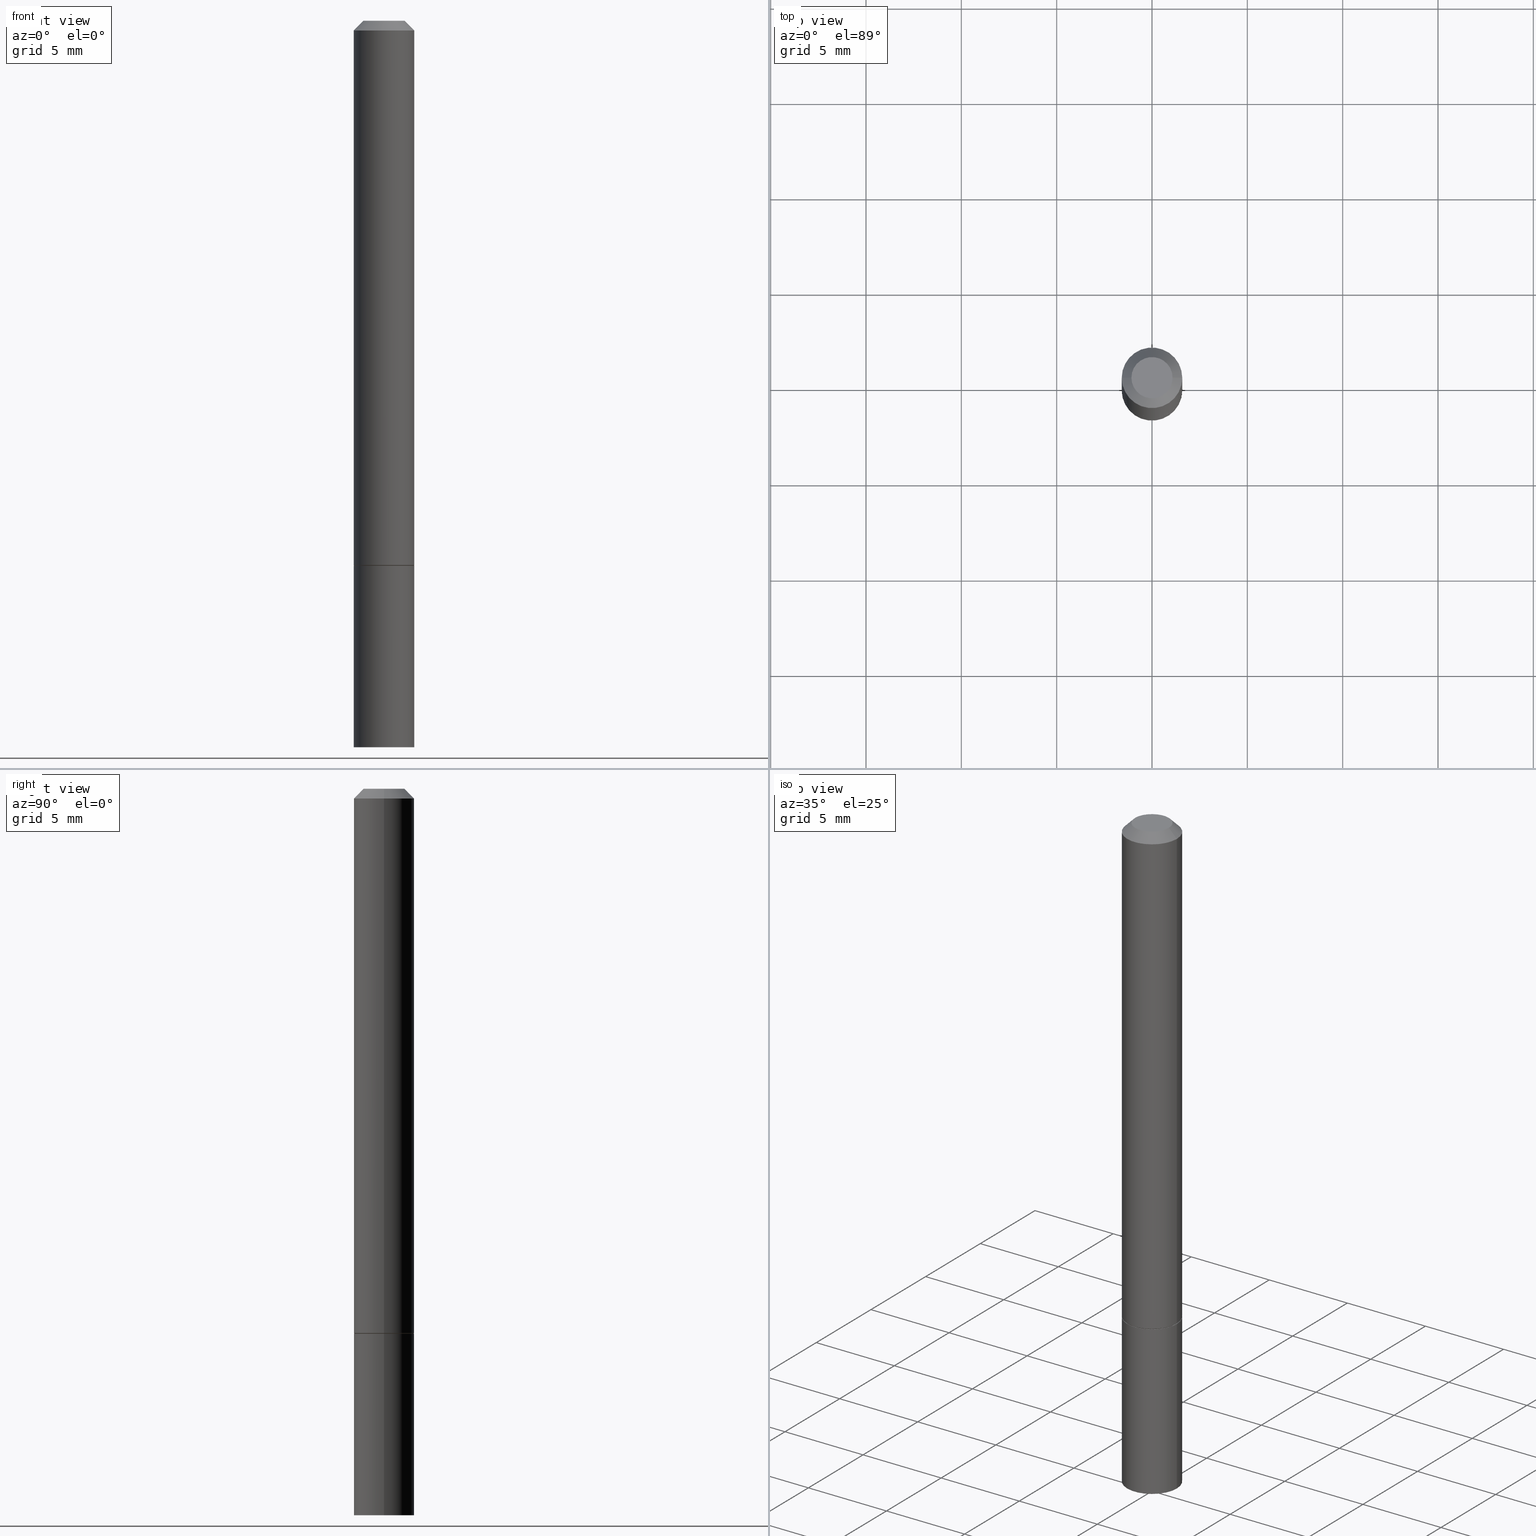
[diagram: canonical four-view strip — front | top / right | iso, engineering-drawing reading convention]
A machine part, canonical four-view strip (front | top / right | iso — engineering-drawing reading convention). The complete STEP part file that produces these views, byte-faithful:
ISO-10303-21;
HEADER;
FILE_DESCRIPTION (( 'STEP AP203' ),
    '1' );
FILE_NAME ('39377.STEP',
    '2024-02-28T00:40:19',
    ( '' ),
    ( '' ),
    'SwSTEP 2.0',
    'SolidWorks 2023',
    '' );
FILE_SCHEMA (( 'CONFIG_CONTROL_DESIGN' ));
ENDSEC;

DATA;
#1 = PERSON ( 'UNSPECIFIED', 'UNSPECIFIED', 'UNSPECIFIED', ('UNSPECIFIED'), ('UNSPECIFIED'), ('UNSPECIFIED') ) ;
#2 = DIRECTION ( 'NONE',  ( 2.445468806185136597E-29, -3.491481338843145583E-15, -1.000000000000000000 ) ) ;
#3 = AXIS2_PLACEMENT_3D ( 'NONE', #28, #285, #359 ) ;
#4 = CC_DESIGN_SECURITY_CLASSIFICATION ( #15, ( #67 ) ) ;
#5 = ORIENTED_EDGE ( 'NONE', *, *, #65, .F. ) ;
#6 = DIRECTION ( 'NONE',  ( -1.000000000000000000, 6.982962677686265922E-15, -4.876176775795935793E-29 ) ) ;
#7 = MANIFOLD_SOLID_BREP ( 'Body-Move/Copy2[2]', #343 ) ;
#8 = LENGTH_MEASURE_WITH_UNIT ( LENGTH_MEASURE( 0.02539999999999999897 ), #258 );
#9 = FACE_OUTER_BOUND ( 'NONE', #155, .T. ) ;
#10 = CONICAL_SURFACE ( 'NONE', #23, 0.06249999999999988204, 0.7853981633974473908 ) ;
#11 = DIRECTION ( 'NONE',  ( -2.445468806185136597E-29, 3.491481338843145583E-15, 1.000000000000000000 ) ) ;
#12 = PERSON_AND_ORGANIZATION ( #1, #128 ) ;
#13 = EDGE_CURVE ( 'NONE', #22, #163, #157, .T. ) ;
#14 = VERTEX_POINT ( 'NONE', #17 ) ;
#15 = SECURITY_CLASSIFICATION ( '', '', #269 ) ;
#16 = PERSON_AND_ORGANIZATION ( #1, #128 ) ;
#17 = CARTESIAN_POINT ( 'NONE',  ( 0.06250000000000001388, -4.360860192215086309E-15, -1.123999999999999888 ) ) ;
#18 = COORDINATED_UNIVERSAL_TIME_OFFSET ( 5, 0, .BEHIND. ) ;
#19 = ORIENTED_EDGE ( 'NONE', *, *, #265, .F. ) ;
#20 = APPROVAL_ROLE ( '' ) ;
#21 = CC_DESIGN_DATE_AND_TIME_ASSIGNMENT ( #153, #346, ( #15 ) ) ;
#22 = VERTEX_POINT ( 'NONE', #246 ) ;
#23 = AXIS2_PLACEMENT_3D ( 'NONE', #335, #310, #58 ) ;
#24 = VERTEX_POINT ( 'NONE', #353 ) ;
#25 = CARTESIAN_POINT ( 'NONE',  ( -0.06150000000000001299, -3.485634269357854820E-15, -1.124999999999999778 ) ) ;
#26 = DIRECTION ( 'NONE',  ( 1.000000000000000000, -6.982962677686267499E-15, 4.876176775795935793E-29 ) ) ;
#27 = VECTOR ( 'NONE', #56, 39.37007874015748854 ) ;
#28 = CARTESIAN_POINT ( 'NONE',  ( 0.000000000000000000, 0.000000000000000000, 0.000000000000000000 ) ) ;
#29 = CC_DESIGN_APPROVAL ( #68, ( #172 ) ) ;
#30 = FACE_OUTER_BOUND ( 'NONE', #304, .T. ) ;
#31 = CARTESIAN_POINT ( 'NONE',  ( 4.364351673554284500E-16, 0.06249999999999478195, -1.500000000000000222 ) ) ;
#32 = LINE ( 'NONE', #318, #138 ) ;
#33 = AXIS2_PLACEMENT_3D ( 'NONE', #196, #337, #282 ) ;
#34 = ADVANCED_FACE ( 'NONE', ( #256 ), #197, .F. ) ;
#35 = CARTESIAN_POINT ( 'NONE',  ( 0.06150000000000001299, -4.357368710876244090E-15, -1.124999999999999778 ) ) ;
#36 = PLANE ( 'NONE',  #123 ) ;
#37 = PLANE ( 'NONE',  #117 ) ;
#38 = AXIS2_PLACEMENT_3D ( 'NONE', #171, #115, #55 ) ;
#39 = AXIS2_PLACEMENT_3D ( 'NONE', #148, #292, #146 ) ;
#40 = APPROVAL_ROLE ( '' ) ;
#41 = DIRECTION ( 'NONE',  ( 1.000000000000000000, 0.000000000000000000, 0.000000000000000000 ) ) ;
#42 = VERTEX_POINT ( 'NONE', #307 ) ;
#43 = DATE_AND_TIME ( #95, #314 ) ;
#44 = ORIENTED_EDGE ( 'NONE', *, *, #231, .F. ) ;
#45 = CONICAL_SURFACE ( 'NONE', #300, 0.06249999999999988204, 0.7853981633974473908 ) ;
#46 =( CONVERSION_BASED_UNIT ( 'INCH', #8 ) LENGTH_UNIT ( ) NAMED_UNIT ( #125 ) );
#47 = EDGE_LOOP ( 'NONE', ( #70, #103, #127, #19 ) ) ;
#48 = CC_DESIGN_DATE_AND_TIME_ASSIGNMENT ( #126, #132, ( #172 ) ) ;
#49 = PERSON_AND_ORGANIZATION ( #1, #128 ) ;
#50 = ORIENTED_EDGE ( 'NONE', *, *, #276, .T. ) ;
#51 = VERTEX_POINT ( 'NONE', #140 ) ;
#52 = ADVANCED_FACE ( 'NONE', ( #283 ), #10, .T. ) ;
#53 = CARTESIAN_POINT ( 'NONE',  ( 3.668203209277704335E-29, -5.237222008264717388E-15, -1.499999999999999778 ) ) ;
#54 = APPROVAL ( #266, 'UNSPECIFIED' ) ;
#55 = DIRECTION ( 'NONE',  ( 1.000000000000000000, -6.982962677686268288E-15, 0.000000000000000000 ) ) ;
#56 = DIRECTION ( 'NONE',  ( -0.7071067811865232589, 7.493145998870265808E-15, 0.7071067811865715536 ) ) ;
#57 = DIRECTION ( 'NONE',  ( 1.000000000000000000, -6.982962677686261189E-15, 0.000000000000000000 ) ) ;
#58 = DIRECTION ( 'NONE',  ( -1.000000000000000000, 6.982962677686266711E-15, 0.000000000000000000 ) ) ;
#59 = DIRECTION ( 'NONE',  ( 1.000000000000000000, -6.982962677686268288E-15, 0.000000000000000000 ) ) ;
#60 = DIRECTION ( 'NONE',  ( -2.445468806185136597E-29, 3.491481338843145583E-15, 1.000000000000000000 ) ) ;
#61 = AXIS2_PLACEMENT_3D ( 'NONE', #110, #281, #336 ) ;
#62 = DIRECTION ( 'NONE',  ( -1.000000000000000000, 6.982962677686265922E-15, -4.876176775795935793E-29 ) ) ;
#63 = DIRECTION ( 'NONE',  ( -2.445468806185136877E-29, 3.491481338843145188E-15, 1.000000000000000000 ) ) ;
#64 = ADVANCED_FACE ( 'NONE', ( #30 ), #193, .F. ) ;
#65 = EDGE_CURVE ( 'NONE', #74, #316, #181, .T. ) ;
#66 = CIRCLE ( 'NONE', #194, 0.04249999999999988509 ) ;
#67 = PRODUCT_DEFINITION_FORMATION_WITH_SPECIFIED_SOURCE ( 'ANY', '', #101, .NOT_KNOWN. ) ;
#68 = APPROVAL ( #297, 'UNSPECIFIED' ) ;
#69 = APPLICATION_PROTOCOL_DEFINITION ( 'international standard', 'config_control_design', 1994, #277 ) ;
#70 = ORIENTED_EDGE ( 'NONE', *, *, #137, .F. ) ;
#71 = PERSON_AND_ORGANIZATION ( #1, #128 ) ;
#72 = CARTESIAN_POINT ( 'NONE',  ( -0.06249999999999988204, 3.666055405785276317E-16, -0.02000000000000008715 ) ) ;
#73 = APPROVAL_DATE_TIME ( #43, #68 ) ;
#74 = VERTEX_POINT ( 'NONE', #25 ) ;
#75 = APPROVAL_DATE_TIME ( #108, #272 ) ;
#76 = ORIENTED_EDGE ( 'NONE', *, *, #339, .F. ) ;
#77 = PERSON_AND_ORGANIZATION_ROLE ( 'creator' ) ;
#78 = ORIENTED_EDGE ( 'NONE', *, *, #365, .F. ) ;
#79 = CC_DESIGN_PERSON_AND_ORGANIZATION_ASSIGNMENT ( #249, #104, ( #101 ) ) ;
#80 = DIRECTION ( 'NONE',  ( -2.445468806185136597E-29, 3.491481338843145583E-15, 1.000000000000000000 ) ) ;
#81 = CLOSED_SHELL ( 'NONE', ( #116, #299, #209, #177 ) ) ;
#82 = CC_DESIGN_APPROVAL ( #272, ( #15 ) ) ;
#83 = DIRECTION ( 'NONE',  ( -2.445468806185136597E-29, 3.491481338843145583E-15, 1.000000000000000000 ) ) ;
#84 = DIRECTION ( 'NONE',  ( -2.445468806185136597E-29, 3.491481338843145583E-15, 1.000000000000000000 ) ) ;
#85 = CYLINDRICAL_SURFACE ( 'NONE', #3, 0.06249999999999995143 ) ;
#86 = CC_DESIGN_PERSON_AND_ORGANIZATION_ASSIGNMENT ( #71, #219, ( #67 ) ) ;
#87 = ORIENTED_EDGE ( 'NONE', *, *, #339, .T. ) ;
#88 = LINE ( 'NONE', #202, #325 ) ;
#89 = VECTOR ( 'NONE', #63, 39.37007874015748143 ) ;
#90 = DIRECTION ( 'NONE',  ( 0.7071067811865469066, -7.319954787623254468E-15, -0.7071067811865482389 ) ) ;
#91 = APPLICATION_CONTEXT ( 'configuration controlled 3d designs of mechanical parts and assemblies' ) ;
#92 = DIRECTION ( 'NONE',  ( -2.445468806185136597E-29, 3.491481338843145583E-15, 1.000000000000000000 ) ) ;
#93 = CARTESIAN_POINT ( 'NONE',  ( 0.04249999999999988509, -3.950909582714363501E-16, -5.549066237130292766E-17 ) ) ;
#94 = CARTESIAN_POINT ( 'NONE',  ( 3.668203209277704335E-29, -5.237222008264717388E-15, -1.499999999999999778 ) ) ;
#95 = CALENDAR_DATE ( 2024, 27, 2 ) ;
#96 = ORIENTED_EDGE ( 'NONE', *, *, #265, .T. ) ;
#97 = AXIS2_PLACEMENT_3D ( 'NONE', #185, #295, #41 ) ;
#98 = EDGE_CURVE ( 'NONE', #24, #42, #262, .T. ) ;
#99 = CALENDAR_DATE ( 2024, 27, 2 ) ;
#100 = ORIENTED_EDGE ( 'NONE', *, *, #13, .T. ) ;
#101 = PRODUCT ( '39377', '39377', '', ( #273 ) ) ;
#102 = COORDINATED_UNIVERSAL_TIME_OFFSET ( 5, 0, .BEHIND. ) ;
#103 = ORIENTED_EDGE ( 'NONE', *, *, #180, .T. ) ;
#104 = PERSON_AND_ORGANIZATION_ROLE ( 'design_owner' ) ;
#105 = EDGE_LOOP ( 'NONE', ( #186, #109, #350, #302 ) ) ;
#106 = AXIS2_PLACEMENT_3D ( 'NONE', #239, #92, #182 ) ;
#107 = CIRCLE ( 'NONE', #222, 0.06250000000000001388 ) ;
#108 = DATE_AND_TIME ( #159, #167 ) ;
#109 = ORIENTED_EDGE ( 'NONE', *, *, #98, .T. ) ;
#110 = CARTESIAN_POINT ( 'NONE',  ( 2.751152406958278111E-29, -3.927916506198538435E-15, -1.124999999999999778 ) ) ;
#111 = CARTESIAN_POINT ( 'NONE',  ( 2.748706938152093068E-29, -3.924425024859694639E-15, -1.123999999999999888 ) ) ;
#112 = APPROVAL_PERSON_ORGANIZATION ( #49, #68, #20 ) ;
#113 = CARTESIAN_POINT ( 'NONE',  ( 0.06249999999999988204, -4.986107516375831334E-16, -0.02000000000000008715 ) ) ;
#114 = FACE_OUTER_BOUND ( 'NONE', #305, .T. ) ;
#115 = DIRECTION ( 'NONE',  ( -2.445468806185136597E-29, 3.491481338843145583E-15, 1.000000000000000000 ) ) ;
#116 = ADVANCED_FACE ( 'NONE', ( #114 ), #257, .T. ) ;
#117 = AXIS2_PLACEMENT_3D ( 'NONE', #31, #341, #62 ) ;
#118 = DIRECTION ( 'NONE',  ( 1.000000000000000000, -6.982962677686261189E-15, 0.000000000000000000 ) ) ;
#119 = EDGE_CURVE ( 'NONE', #22, #191, #66, .T. ) ;
#120 = LINE ( 'NONE', #288, #206 ) ;
#121 = FACE_OUTER_BOUND ( 'NONE', #347, .T. ) ;
#122 = LINE ( 'NONE', #319, #89 ) ;
#123 = AXIS2_PLACEMENT_3D ( 'NONE', #208, #290, #6 ) ;
#124 = CARTESIAN_POINT ( 'NONE',  ( 2.751152406958278111E-29, -3.927916506198538435E-15, -1.124999999999999778 ) ) ;
#125 = DIMENSIONAL_EXPONENTS ( 1.000000000000000000, 0.000000000000000000, 0.000000000000000000, 0.000000000000000000, 0.000000000000000000, 0.000000000000000000, 0.000000000000000000 ) ;
#126 = DATE_AND_TIME ( #223, #356 ) ;
#127 = ORIENTED_EDGE ( 'NONE', *, *, #289, .T. ) ;
#128 = ORGANIZATION ( 'UNSPECIFIED', 'UNSPECIFIED', '' ) ;
#129 = MANIFOLD_SOLID_BREP ( 'Body-Move/Copy2[1]', #81 ) ;
#130 = PERSON_AND_ORGANIZATION_ROLE ( 'classification_officer' ) ;
#131 = ORIENTED_EDGE ( 'NONE', *, *, #189, .F. ) ;
#132 = DATE_TIME_ROLE ( 'creation_date' ) ;
#133 = ORIENTED_EDGE ( 'NONE', *, *, #65, .T. ) ;
#134 = ADVANCED_FACE ( 'NONE', ( #366 ), #252, .T. ) ;
#135 = SHAPE_DEFINITION_REPRESENTATION ( #352, #254 ) ;
#136 = EDGE_LOOP ( 'NONE', ( #44, #235, #220, #214 ) ) ;
#137 = EDGE_CURVE ( 'NONE', #160, #163, #88, .T. ) ;
#138 = VECTOR ( 'NONE', #90, 39.37007874015748143 ) ;
#139 = AXIS2_PLACEMENT_3D ( 'NONE', #124, #175, #344 ) ;
#140 = CARTESIAN_POINT ( 'NONE',  ( -0.06250000000000001388, -4.138480047381564901E-15, -1.124999999999999778 ) ) ;
#141 = CARTESIAN_POINT ( 'NONE',  ( -0.06150000000000001299, -3.490932723706076827E-15, -1.124999999999999778 ) ) ;
#142 = CYLINDRICAL_SURFACE ( 'NONE', #306, 0.06250000000000001388 ) ;
#143 = EDGE_CURVE ( 'NONE', #74, #160, #229, .T. ) ;
#144 = DIRECTION ( 'NONE',  ( 1.000000000000000000, -6.982962677686266711E-15, 0.000000000000000000 ) ) ;
#145 = DIRECTION ( 'NONE',  ( 1.000000000000000000, -6.982962677686267499E-15, 4.870577812114097619E-29 ) ) ;
#146 = DIRECTION ( 'NONE',  ( 1.000000000000000000, -6.982962677686266711E-15, 0.000000000000000000 ) ) ;
#147 = CC_DESIGN_PERSON_AND_ORGANIZATION_ASSIGNMENT ( #16, #130, ( #15 ) ) ;
#148 = CARTESIAN_POINT ( 'NONE',  ( 4.890937612370294178E-31, -6.982962677686321191E-17, -0.02000000000000008715 ) ) ;
#149 = FACE_OUTER_BOUND ( 'NONE', #357, .T. ) ;
#150 = CARTESIAN_POINT ( 'NONE',  ( 1.357006838635785746E-45, -1.937446121494581442E-31, -5.549066237130534971E-17 ) ) ;
#151 = FACE_OUTER_BOUND ( 'NONE', #332, .T. ) ;
#152 = AXIS2_PLACEMENT_3D ( 'NONE', #150, #60, #264 ) ;
#153 = DATE_AND_TIME ( #245, #349 ) ;
#154 = PERSON_AND_ORGANIZATION ( #1, #128 ) ;
#155 = EDGE_LOOP ( 'NONE', ( #244, #271, #100, #96 ) ) ;
#156 = PERSON_AND_ORGANIZATION ( #1, #128 ) ;
#157 = LINE ( 'NONE', #72, #268 ) ;
#158 = AXIS2_PLACEMENT_3D ( 'NONE', #323, #11, #59 ) ;
#159 = CALENDAR_DATE ( 2024, 27, 2 ) ;
#160 = VERTEX_POINT ( 'NONE', #253 ) ;
#161 = EDGE_CURVE ( 'NONE', #328, #51, #166, .T. ) ;
#162 = COORDINATED_UNIVERSAL_TIME_OFFSET ( 5, 0, .BEHIND. ) ;
#163 = VERTEX_POINT ( 'NONE', #333 ) ;
#164 = ADVANCED_FACE ( 'NONE', ( #225 ), #85, .T. ) ;
#165 = ORIENTED_EDGE ( 'NONE', *, *, #240, .T. ) ;
#166 = CIRCLE ( 'NONE', #33, 0.06250000000000001388 ) ;
#167 = LOCAL_TIME ( 19, 40, 19.00000000000000000, #162 ) ;
#168 = FACE_OUTER_BOUND ( 'NONE', #105, .T. ) ;
#169 = DIRECTION ( 'NONE',  ( 1.000000000000000000, -6.982962677686266711E-15, 4.876176775795935793E-29 ) ) ;
#170 = DIRECTION ( 'NONE',  ( -2.445468806185136597E-29, 3.491481338843145583E-15, 1.000000000000000000 ) ) ;
#171 = CARTESIAN_POINT ( 'NONE',  ( 2.751152406958278111E-29, -3.927916506198538435E-15, -1.124999999999999778 ) ) ;
#172 = PRODUCT_DEFINITION ( 'UNKNOWN', '', #67, #236 ) ;
#173 = CARTESIAN_POINT ( 'NONE',  ( 1.357006838635785746E-45, -1.937446121494581442E-31, -5.549066237130534971E-17 ) ) ;
#174 = ORIENTED_EDGE ( 'NONE', *, *, #161, .F. ) ;
#175 = DIRECTION ( 'NONE',  ( -2.445468806185136597E-29, 3.491481338843145583E-15, 1.000000000000000000 ) ) ;
#176 = DIRECTION ( 'NONE',  ( -2.445468806185136877E-29, 3.491481338843145188E-15, 1.000000000000000000 ) ) ;
#177 = ADVANCED_FACE ( 'NONE', ( #168 ), #142, .T. ) ;
#178 = DIRECTION ( 'NONE',  ( -2.445468806185136877E-29, 3.491481338843145188E-15, 1.000000000000000000 ) ) ;
#179 = CARTESIAN_POINT ( 'NONE',  ( 0.06249999999999995143, -4.364351673553913243E-16, 3.047610484872457418E-30 ) ) ;
#180 = EDGE_CURVE ( 'NONE', #160, #14, #212, .T. ) ;
#181 = CIRCLE ( 'NONE', #38, 0.06150000000000001299 ) ;
#182 = DIRECTION ( 'NONE',  ( 1.000000000000000000, -6.982962677686268288E-15, 0.000000000000000000 ) ) ;
#183 = PERSON_AND_ORGANIZATION ( #1, #128 ) ;
#184 = VERTEX_POINT ( 'NONE', #113 ) ;
#185 = CARTESIAN_POINT ( 'NONE',  ( 0.000000000000000000, 0.000000000000000000, 0.000000000000000000 ) ) ;
#186 = ORIENTED_EDGE ( 'NONE', *, *, #240, .F. ) ;
#187 = APPROVAL_ROLE ( '' ) ;
#188 = ORIENTED_EDGE ( 'NONE', *, *, #241, .F. ) ;
#189 = EDGE_CURVE ( 'NONE', #184, #163, #320, .T. ) ;
#190 = ORIENTED_EDGE ( 'NONE', *, *, #119, .T. ) ;
#191 = VERTEX_POINT ( 'NONE', #93 ) ;
#192 = ADVANCED_FACE ( 'NONE', ( #121 ), #361, .T. ) ;
#193 = PLANE ( 'NONE',  #61 ) ;
#194 = AXIS2_PLACEMENT_3D ( 'NONE', #173, #84, #145 ) ;
#195 = AXIS2_PLACEMENT_3D ( 'NONE', #237, #342, #260 ) ;
#196 = CARTESIAN_POINT ( 'NONE',  ( 2.751152406958278111E-29, -3.927916506198538435E-15, -1.124999999999999778 ) ) ;
#197 = PLANE ( 'NONE',  #284 ) ;
#198 = DIRECTION ( 'NONE',  ( 1.000000000000000000, -6.982962677686267499E-15, 4.876176775795935793E-29 ) ) ;
#199 = ADVANCED_FACE ( 'NONE', ( #9 ), #45, .T. ) ;
#200 = ORIENTED_EDGE ( 'NONE', *, *, #98, .F. ) ;
#201 = APPROVAL_PERSON_ORGANIZATION ( #12, #272, #187 ) ;
#202 = CARTESIAN_POINT ( 'NONE',  ( -0.06249999999999995143, 4.440892098500622710E-16, -3.074334431409313661E-30 ) ) ;
#203 = CC_DESIGN_PERSON_AND_ORGANIZATION_ASSIGNMENT ( #156, #294, ( #67 ) ) ;
#204 = LINE ( 'NONE', #179, #251 ) ;
#205 = FACE_OUTER_BOUND ( 'NONE', #250, .T. ) ;
#206 = VECTOR ( 'NONE', #178, 39.37007874015748143 ) ;
#207 = DIRECTION ( 'NONE',  ( -1.000000000000000000, 6.982962677686266711E-15, 0.000000000000000000 ) ) ;
#208 = CARTESIAN_POINT ( 'NONE',  ( 4.364351673554192795E-16, 0.06249999999999608646, -1.125000000000000222 ) ) ;
#209 = ADVANCED_FACE ( 'NONE', ( #205 ), #36, .F. ) ;
#210 = DIRECTION ( 'NONE',  ( -2.445468806185136597E-29, 3.491481338843145583E-15, 1.000000000000000000 ) ) ;
#211 = CC_DESIGN_PERSON_AND_ORGANIZATION_ASSIGNMENT ( #183, #77, ( #172 ) ) ;
#212 = CIRCLE ( 'NONE', #348, 0.06250000000000001388 ) ;
#213 = CIRCLE ( 'NONE', #158, 0.06150000000000001299 ) ;
#214 = ORIENTED_EDGE ( 'NONE', *, *, #13, .F. ) ;
#215 = APPROVAL_DATE_TIME ( #247, #54 ) ;
#216 = ORIENTED_EDGE ( 'NONE', *, *, #180, .F. ) ;
#217 =( NAMED_UNIT ( * ) SI_UNIT ( $, .STERADIAN. ) SOLID_ANGLE_UNIT ( ) );
#218 = ORIENTED_EDGE ( 'NONE', *, *, #317, .T. ) ;
#219 = PERSON_AND_ORGANIZATION_ROLE ( 'creator' ) ;
#220 = ORIENTED_EDGE ( 'NONE', *, *, #189, .T. ) ;
#221 = AXIS2_PLACEMENT_3D ( 'NONE', #53, #312, #57 ) ;
#222 = AXIS2_PLACEMENT_3D ( 'NONE', #94, #210, #118 ) ;
#223 = CALENDAR_DATE ( 2024, 27, 2 ) ;
#224 = EDGE_LOOP ( 'NONE', ( #87, #275, #131, #330 ) ) ;
#225 = FACE_OUTER_BOUND ( 'NONE', #224, .T. ) ;
#226 = CARTESIAN_POINT ( 'NONE',  ( 0.000000000000000000, 0.000000000000000000, 0.000000000000000000 ) ) ;
#227 =( GEOMETRIC_REPRESENTATION_CONTEXT ( 3 ) GLOBAL_UNCERTAINTY_ASSIGNED_CONTEXT ( ( #309 ) ) GLOBAL_UNIT_ASSIGNED_CONTEXT ( ( #46, #354, #217 ) ) REPRESENTATION_CONTEXT ( 'NONE', 'WORKASPACE' ) );
#228 = CARTESIAN_POINT ( 'NONE',  ( 4.890937612370294178E-31, -6.982962677686321191E-17, -0.02000000000000008715 ) ) ;
#229 = LINE ( 'NONE', #141, #27 ) ;
#230 = CARTESIAN_POINT ( 'NONE',  ( 0.000000000000000000, 0.000000000000000000, 0.000000000000000000 ) ) ;
#231 = EDGE_CURVE ( 'NONE', #191, #22, #313, .T. ) ;
#232 = AXIS2_PLACEMENT_3D ( 'NONE', #226, #364, #198 ) ;
#233 = CC_DESIGN_APPROVAL ( #54, ( #67 ) ) ;
#234 = CARTESIAN_POINT ( 'NONE',  ( 4.890937612370294178E-31, -6.982962677686321191E-17, -0.02000000000000008715 ) ) ;
#235 = ORIENTED_EDGE ( 'NONE', *, *, #261, .T. ) ;
#236 = DESIGN_CONTEXT ( 'detailed design', #277, 'design' ) ;
#237 = CARTESIAN_POINT ( 'NONE',  ( 2.751152406958278111E-29, -3.927916506198538435E-15, -1.124999999999999778 ) ) ;
#238 = DIRECTION ( 'NONE',  ( -2.445468806185136597E-29, 3.491481338843145583E-15, 1.000000000000000000 ) ) ;
#239 = CARTESIAN_POINT ( 'NONE',  ( 2.751152406958278111E-29, -3.927916506198538435E-15, -1.124999999999999778 ) ) ;
#240 = EDGE_CURVE ( 'NONE', #24, #51, #120, .T. ) ;
#241 = EDGE_CURVE ( 'NONE', #42, #328, #122, .T. ) ;
#242 = ORIENTED_EDGE ( 'NONE', *, *, #365, .T. ) ;
#243 = CIRCLE ( 'NONE', #195, 0.06250000000000001388 ) ;
#244 = ORIENTED_EDGE ( 'NONE', *, *, #261, .F. ) ;
#245 = CALENDAR_DATE ( 2024, 27, 2 ) ;
#246 = CARTESIAN_POINT ( 'NONE',  ( -0.04249999999999988509, 3.316907271900965249E-16, -5.549066237130754373E-17 ) ) ;
#247 = DATE_AND_TIME ( #99, #326 ) ;
#248 = ORIENTED_EDGE ( 'NONE', *, *, #231, .T. ) ;
#249 = PERSON_AND_ORGANIZATION ( #1, #128 ) ;
#250 = EDGE_LOOP ( 'NONE', ( #355, #218 ) ) ;
#251 = VECTOR ( 'NONE', #176, 39.37007874015748143 ) ;
#252 = CYLINDRICAL_SURFACE ( 'NONE', #278, 0.06249999999999995143 ) ;
#253 = CARTESIAN_POINT ( 'NONE',  ( -0.06250000000000001388, -1.553038115968214380E-15, -1.123999999999999888 ) ) ;
#254 = ADVANCED_BREP_SHAPE_REPRESENTATION ( '39377', ( #129, #7, #97 ), #227 ) ;
#255 = DIRECTION ( 'NONE',  ( -2.445468806185136597E-29, 3.491481338843145583E-15, 1.000000000000000000 ) ) ;
#256 = FACE_OUTER_BOUND ( 'NONE', #279, .T. ) ;
#257 = CYLINDRICAL_SURFACE ( 'NONE', #232, 0.06250000000000001388 ) ;
#258 =( LENGTH_UNIT ( ) NAMED_UNIT ( * ) SI_UNIT ( $, .METRE. ) );
#259 = CARTESIAN_POINT ( 'NONE',  ( 0.06250000000000001388, -4.364351673553930105E-15, -1.124999999999999778 ) ) ;
#260 = DIRECTION ( 'NONE',  ( 1.000000000000000000, -6.982962677686269077E-15, 0.000000000000000000 ) ) ;
#261 = EDGE_CURVE ( 'NONE', #191, #184, #32, .T. ) ;
#262 = CIRCLE ( 'NONE', #221, 0.06250000000000001388 ) ;
#263 = AXIS2_PLACEMENT_3D ( 'NONE', #324, #238, #345 ) ;
#264 = DIRECTION ( 'NONE',  ( 1.000000000000000000, -6.982962677686267499E-15, 4.870577812114097619E-29 ) ) ;
#265 = EDGE_CURVE ( 'NONE', #163, #184, #308, .T. ) ;
#266 = APPROVAL_STATUS ( 'not_yet_approved' ) ;
#267 = ORIENTED_EDGE ( 'NONE', *, *, #143, .T. ) ;
#268 = VECTOR ( 'NONE', #298, 39.37007874015748143 ) ;
#269 = SECURITY_CLASSIFICATION_LEVEL ( 'unclassified' ) ;
#270 = CONICAL_SURFACE ( 'NONE', #139, 0.06150000000000001299, 0.7853981633974141952 ) ;
#271 = ORIENTED_EDGE ( 'NONE', *, *, #119, .F. ) ;
#272 = APPROVAL ( #351, 'UNSPECIFIED' ) ;
#273 = MECHANICAL_CONTEXT ( 'NONE', #91, 'mechanical' ) ;
#274 = ORIENTED_EDGE ( 'NONE', *, *, #276, .F. ) ;
#275 = ORIENTED_EDGE ( 'NONE', *, *, #137, .T. ) ;
#276 = EDGE_CURVE ( 'NONE', #316, #74, #213, .T. ) ;
#277 = APPLICATION_CONTEXT ( 'configuration controlled 3d designs of mechanical parts and assemblies' ) ;
#278 = AXIS2_PLACEMENT_3D ( 'NONE', #230, #83, #169 ) ;
#279 = EDGE_LOOP ( 'NONE', ( #190, #248 ) ) ;
#280 = APPROVAL_PERSON_ORGANIZATION ( #154, #54, #40 ) ;
#281 = DIRECTION ( 'NONE',  ( -2.438088387897960049E-29, 3.491481338843145188E-15, 1.000000000000000000 ) ) ;
#282 = DIRECTION ( 'NONE',  ( 1.000000000000000000, -6.982962677686269077E-15, 0.000000000000000000 ) ) ;
#283 = FACE_OUTER_BOUND ( 'NONE', #136, .T. ) ;
#284 = AXIS2_PLACEMENT_3D ( 'NONE', #358, #338, #311 ) ;
#285 = DIRECTION ( 'NONE',  ( -2.445468806185136597E-29, 3.491481338843145583E-15, 1.000000000000000000 ) ) ;
#286 = CARTESIAN_POINT ( 'NONE',  ( 0.000000000000000000, 0.000000000000000000, 0.000000000000000000 ) ) ;
#287 = EDGE_CURVE ( 'NONE', #316, #14, #340, .T. ) ;
#288 = CARTESIAN_POINT ( 'NONE',  ( -0.06250000000000001388, 4.440892098500627148E-16, -3.074334431409317165E-30 ) ) ;
#289 = EDGE_CURVE ( 'NONE', #14, #184, #204, .T. ) ;
#290 = DIRECTION ( 'NONE',  ( 2.438088387897960049E-29, -3.491481338843145188E-15, -1.000000000000000000 ) ) ;
#291 = CARTESIAN_POINT ( 'NONE',  ( 0.06150000000000001299, -4.357368710876244090E-15, -1.124999999999999778 ) ) ;
#292 = DIRECTION ( 'NONE',  ( -2.445468806185136597E-29, 3.491481338843145583E-15, 1.000000000000000000 ) ) ;
#293 = VECTOR ( 'NONE', #321, 39.37007874015748854 ) ;
#294 = PERSON_AND_ORGANIZATION_ROLE ( 'design_supplier' ) ;
#295 = DIRECTION ( 'NONE',  ( 0.000000000000000000, 0.000000000000000000, 1.000000000000000000 ) ) ;
#296 = ORIENTED_EDGE ( 'NONE', *, *, #287, .T. ) ;
#297 = APPROVAL_STATUS ( 'not_yet_approved' ) ;
#298 = DIRECTION ( 'NONE',  ( -0.7071067811865469066, 2.468850131082249961E-15, -0.7071067811865482389 ) ) ;
#299 = ADVANCED_FACE ( 'NONE', ( #149 ), #37, .T. ) ;
#300 = AXIS2_PLACEMENT_3D ( 'NONE', #234, #2, #207 ) ;
#301 = COORDINATED_UNIVERSAL_TIME_OFFSET ( 5, 0, .BEHIND. ) ;
#302 = ORIENTED_EDGE ( 'NONE', *, *, #317, .F. ) ;
#303 = COORDINATED_UNIVERSAL_TIME_OFFSET ( 5, 0, .BEHIND. ) ;
#304 = EDGE_LOOP ( 'NONE', ( #274, #5 ) ) ;
#305 = EDGE_LOOP ( 'NONE', ( #242, #165, #174, #188 ) ) ;
#306 = AXIS2_PLACEMENT_3D ( 'NONE', #286, #80, #26 ) ;
#307 = CARTESIAN_POINT ( 'NONE',  ( 0.06250000000000001388, -5.673657175620109057E-15, -1.499999999999999778 ) ) ;
#308 = CIRCLE ( 'NONE', #39, 0.06249999999999988204 ) ;
#309 = UNCERTAINTY_MEASURE_WITH_UNIT (LENGTH_MEASURE( 1.000000000000000082E-05 ), #46, 'distance_accuracy_value', 'NONE');
#310 = DIRECTION ( 'NONE',  ( 2.445468806185136597E-29, -3.491481338843145583E-15, -1.000000000000000000 ) ) ;
#311 = DIRECTION ( 'NONE',  ( -1.000000000000000000, 6.982962677686265922E-15, -4.876176775795935793E-29 ) ) ;
#312 = DIRECTION ( 'NONE',  ( -2.445468806185136597E-29, 3.491481338843145583E-15, 1.000000000000000000 ) ) ;
#313 = CIRCLE ( 'NONE', #152, 0.04249999999999988509 ) ;
#314 = LOCAL_TIME ( 19, 40, 19.00000000000000000, #18 ) ;
#315 = DIRECTION ( 'NONE',  ( -2.445468806185136877E-29, 3.491481338843145188E-15, 1.000000000000000000 ) ) ;
#316 = VERTEX_POINT ( 'NONE', #291 ) ;
#317 = EDGE_CURVE ( 'NONE', #51, #328, #243, .T. ) ;
#318 = CARTESIAN_POINT ( 'NONE',  ( 0.06249999999999988204, -4.986107516375831334E-16, -0.02000000000000008715 ) ) ;
#319 = CARTESIAN_POINT ( 'NONE',  ( 0.06250000000000001388, -4.364351673553918173E-16, 3.047610484872460571E-30 ) ) ;
#320 = CIRCLE ( 'NONE', #334, 0.06249999999999988204 ) ;
#321 = DIRECTION ( 'NONE',  ( 0.7071067811865232589, -2.468850131082003836E-15, 0.7071067811865715536 ) ) ;
#322 = ADVANCED_FACE ( 'NONE', ( #151 ), #270, .T. ) ;
#323 = CARTESIAN_POINT ( 'NONE',  ( 2.751152406958278111E-29, -3.927916506198538435E-15, -1.124999999999999778 ) ) ;
#324 = CARTESIAN_POINT ( 'NONE',  ( 2.748706938152093068E-29, -3.924425024859694639E-15, -1.123999999999999888 ) ) ;
#325 = VECTOR ( 'NONE', #315, 39.37007874015748143 ) ;
#326 = LOCAL_TIME ( 19, 40, 19.00000000000000000, #303 ) ;
#327 = ORIENTED_EDGE ( 'NONE', *, *, #143, .F. ) ;
#328 = VERTEX_POINT ( 'NONE', #259 ) ;
#329 = APPLICATION_PROTOCOL_DEFINITION ( 'international standard', 'config_control_design', 1994, #91 ) ;
#330 = ORIENTED_EDGE ( 'NONE', *, *, #289, .F. ) ;
#331 = ORIENTED_EDGE ( 'NONE', *, *, #287, .F. ) ;
#332 = EDGE_LOOP ( 'NONE', ( #50, #267, #76, #331 ) ) ;
#333 = CARTESIAN_POINT ( 'NONE',  ( -0.06249999999999988204, 3.666055405785276317E-16, -0.02000000000000008715 ) ) ;
#334 = AXIS2_PLACEMENT_3D ( 'NONE', #228, #170, #144 ) ;
#335 = CARTESIAN_POINT ( 'NONE',  ( 4.890937612370294178E-31, -6.982962677686321191E-17, -0.02000000000000008715 ) ) ;
#336 = DIRECTION ( 'NONE',  ( 1.000000000000000000, -6.982962677686265922E-15, 4.876176775795935793E-29 ) ) ;
#337 = DIRECTION ( 'NONE',  ( -2.445468806185136597E-29, 3.491481338843145583E-15, 1.000000000000000000 ) ) ;
#338 = DIRECTION ( 'NONE',  ( 2.438088387897960049E-29, -3.491481338843145188E-15, -1.000000000000000000 ) ) ;
#339 = EDGE_CURVE ( 'NONE', #14, #160, #363, .T. ) ;
#340 = LINE ( 'NONE', #35, #293 ) ;
#341 = DIRECTION ( 'NONE',  ( 2.438088387897960049E-29, -3.491481338843145188E-15, -1.000000000000000000 ) ) ;
#342 = DIRECTION ( 'NONE',  ( -2.445468806185136597E-29, 3.491481338843145583E-15, 1.000000000000000000 ) ) ;
#343 = CLOSED_SHELL ( 'NONE', ( #322, #164, #52, #199, #134, #192, #64, #34 ) ) ;
#344 = DIRECTION ( 'NONE',  ( 1.000000000000000000, -6.982962677686268288E-15, 0.000000000000000000 ) ) ;
#345 = DIRECTION ( 'NONE',  ( 1.000000000000000000, -6.982962677686269077E-15, 0.000000000000000000 ) ) ;
#346 = DATE_TIME_ROLE ( 'classification_date' ) ;
#347 = EDGE_LOOP ( 'NONE', ( #327, #133, #296, #216 ) ) ;
#348 = AXIS2_PLACEMENT_3D ( 'NONE', #111, #255, #362 ) ;
#349 = LOCAL_TIME ( 19, 40, 19.00000000000000000, #301 ) ;
#350 = ORIENTED_EDGE ( 'NONE', *, *, #241, .T. ) ;
#351 = APPROVAL_STATUS ( 'not_yet_approved' ) ;
#352 = PRODUCT_DEFINITION_SHAPE ( 'NONE', 'NONE',  #172 ) ;
#353 = CARTESIAN_POINT ( 'NONE',  ( -0.06250000000000001388, -4.138480047381564901E-15, -1.499999999999999778 ) ) ;
#354 =( NAMED_UNIT ( * ) PLANE_ANGLE_UNIT ( ) SI_UNIT ( $, .RADIAN. ) );
#355 = ORIENTED_EDGE ( 'NONE', *, *, #161, .T. ) ;
#356 = LOCAL_TIME ( 19, 40, 19.00000000000000000, #102 ) ;
#357 = EDGE_LOOP ( 'NONE', ( #78, #200 ) ) ;
#358 = CARTESIAN_POINT ( 'NONE',  ( 2.967759138016655168E-16, 0.04249999999999988509, -1.761332880864859756E-16 ) ) ;
#359 = DIRECTION ( 'NONE',  ( 1.000000000000000000, -6.982962677686266711E-15, 4.876176775795935793E-29 ) ) ;
#360 = PRODUCT_RELATED_PRODUCT_CATEGORY ( 'detail', '', ( #101 ) ) ;
#361 = CONICAL_SURFACE ( 'NONE', #106, 0.06150000000000001299, 0.7853981633974141952 ) ;
#362 = DIRECTION ( 'NONE',  ( 1.000000000000000000, -6.982962677686269077E-15, 0.000000000000000000 ) ) ;
#363 = CIRCLE ( 'NONE', #263, 0.06250000000000001388 ) ;
#364 = DIRECTION ( 'NONE',  ( -2.445468806185136597E-29, 3.491481338843145583E-15, 1.000000000000000000 ) ) ;
#365 = EDGE_CURVE ( 'NONE', #42, #24, #107, .T. ) ;
#366 = FACE_OUTER_BOUND ( 'NONE', #47, .T. ) ;
ENDSEC;
END-ISO-10303-21;
